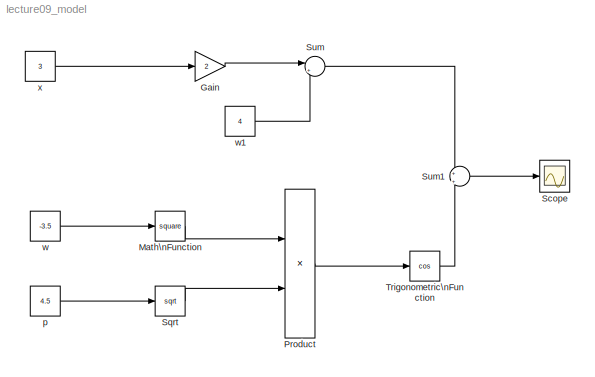
MODEL lecture09_model
KIND model
BLOCK [Gain] Gain
  Gain = 2
  OutDataTypeStr = Inherit: Inherit via internal rule
  ParamDataTypeStr = Inherit: Inherit via internal rule
  SID = 4
  SaturateOnIntegerOverflow = off
BLOCK [Math] Math\nFunction
  Operator = square
  Ports = [1, 1]
  SID = 8
BLOCK [Product] Product
  InputSameDT = off
  OutDataTypeStr = Inherit: Inherit via internal rule
  Ports = [2, 1]
  SID = 11
  SaturateOnIntegerOverflow = off
BLOCK [Scope] Scope
  DataFormat = StructureWithTime
  Floating = off
  NumInputPorts = 1
  Ports = [1]
  SID = 13
  SampleTime = 0
BLOCK [Sqrt] Sqrt
  SID = 10
BLOCK [Sum] Sum
  IconShape = round
  InputSameDT = off
  Inputs = |++
  OutDataTypeStr = Inherit: Inherit via internal rule
  Ports = [2, 1]
  SID = 5
  SaturateOnIntegerOverflow = off
BLOCK [Sum] Sum1
  IconShape = round
  InputSameDT = off
  Inputs = +|+
  OutDataTypeStr = Inherit: Inherit via internal rule
  Ports = [2, 1]
  SID = 7
  SaturateOnIntegerOverflow = off
BLOCK [Trigonometry] Trigonometric\nFunction
  Operator = cos
  Ports = [1, 1]
  SID = 12
BLOCK [Constant] p
  SID = 3
  Value = 4.5
BLOCK [Constant] w
  SID = 2
  Value = -3.5
BLOCK [Constant] w1
  SID = 6
  Value = 4
BLOCK [Constant] x
  SID = 1
  Value = 3
LINE Gain:1 -> Sum:1
LINE Math\nFunction:1 -> Product:1
LINE Product:1 -> Trigonometric\nFunction:1
LINE Sqrt:1 -> Product:2
LINE Sum1:1 -> Scope:1
LINE Sum:1 -> Sum1:1
LINE Trigonometric\nFunction:1 -> Sum1:2
LINE p:1 -> Sqrt:1
LINE w1:1 -> Sum:2
LINE w:1 -> Math\nFunction:1
LINE x:1 -> Gain:1
